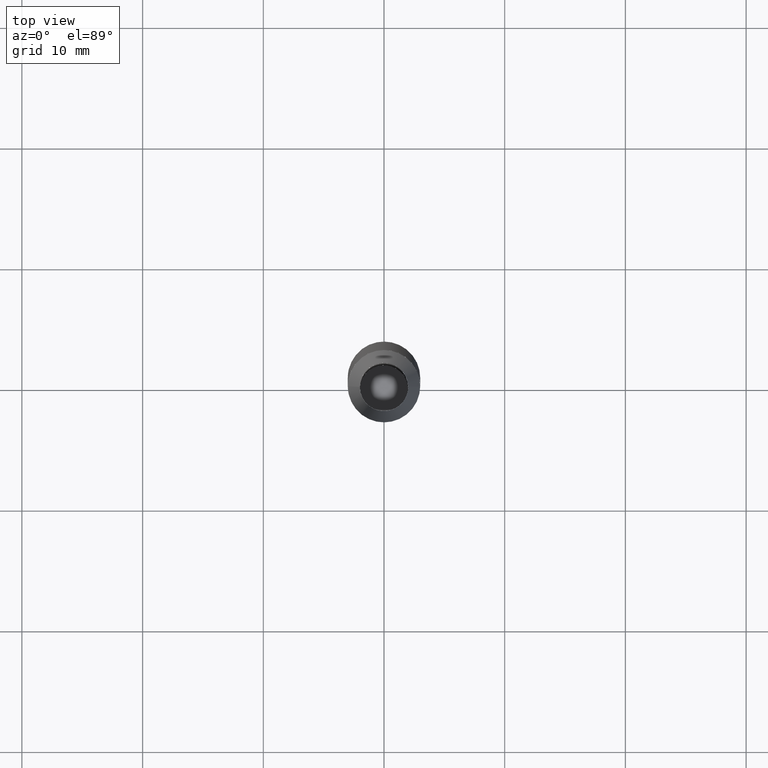
[diagram: clean part render]
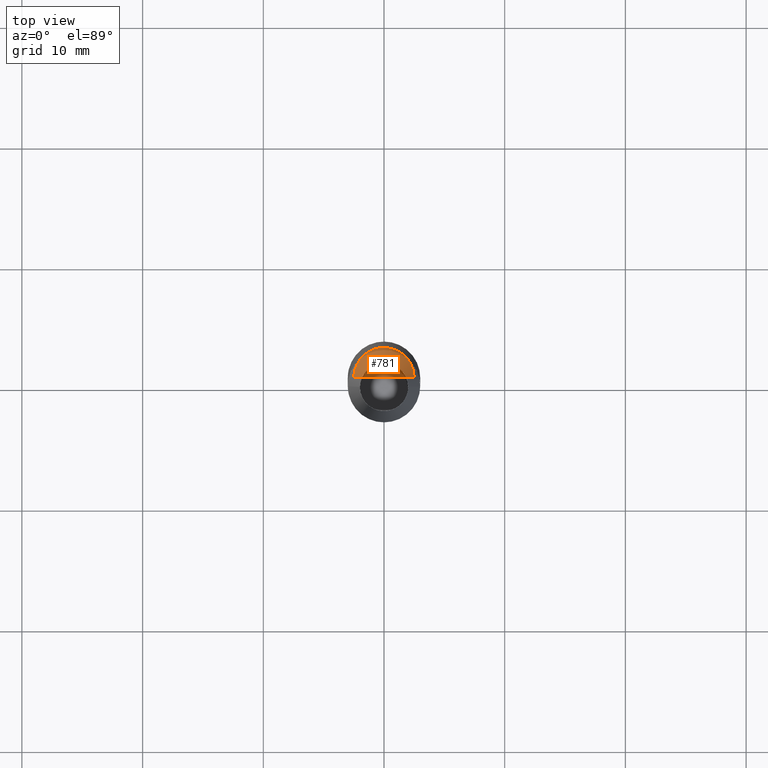
[diagram: same view with one face highlighted and labeled with its STEP entity id]
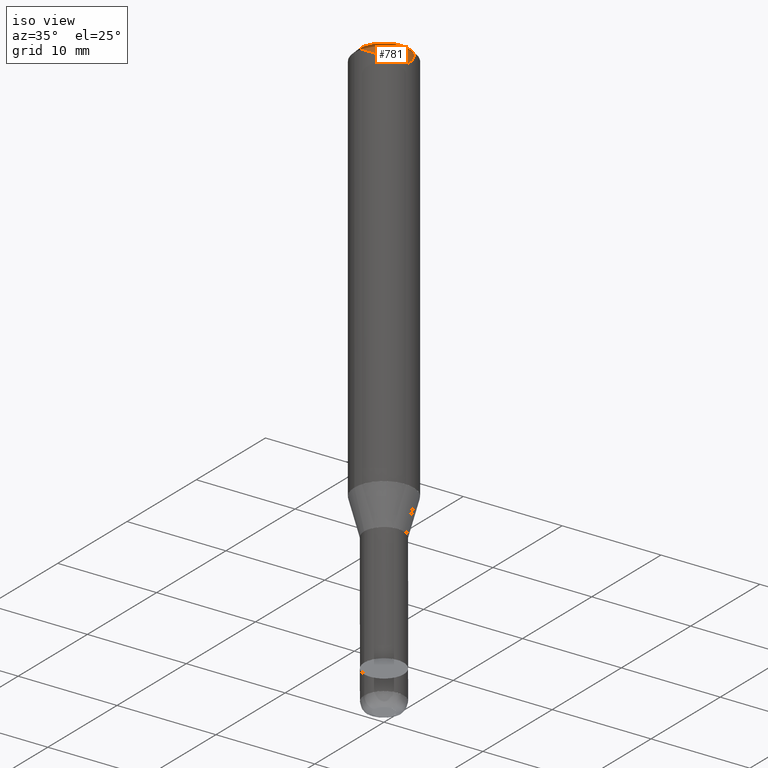
[diagram: same view with one face highlighted and labeled with its STEP entity id]
A machine part, top view. The second image highlights one B-rep face of the part: STEP entity #781.
A second angle (iso view) of the same face is appended — the face is thin or edge-on in the first view.
In plain terms, the highlighted face is a freeform B-spline surface patch.
Its self-contained STEP definition (entity closure, byte-faithful):
#497=CARTESIAN_POINT('',(2.5,0.0,40.267949192431));
#498=CARTESIAN_POINT('',(2.5,2.5,40.267949192431));
#499=CARTESIAN_POINT('',(0.0,2.5,40.267949192431));
#500=CARTESIAN_POINT('',(-2.5,2.5,40.267949192431));
#501=CARTESIAN_POINT('',(-2.5,0.0,40.267949192431));
#502=CARTESIAN_POINT('',(0.0,0.0,40.267949192431));
#766=(
BOUNDED_SURFACE()
B_SPLINE_SURFACE(1,2,(
(#497,#498,#499,#500,#501),
(#502,#502,#502,#502,#502)
), .UNSPECIFIED.,.F.,.F.,.F.)
B_SPLINE_SURFACE_WITH_KNOTS((2,2),(3,2,3),(
0.0,1.0),(
0.0,0.5,1.0), .UNSPECIFIED.)
GEOMETRIC_REPRESENTATION_ITEM()
RATIONAL_B_SPLINE_SURFACE(((1.0,0.707106781187,1.0,0.707106781187,1.0),
(1.0,0.707106781187,1.0,0.707106781187,1.0)
))
REPRESENTATION_ITEM('')
SURFACE()
);
#767=(
BOUNDED_CURVE()
B_SPLINE_CURVE(1,(#502,#497),.UNSPECIFIED.,.F.,.F.)
B_SPLINE_CURVE_WITH_KNOTS((2,2),
(0.0,1.0),.UNSPECIFIED.)
CURVE()
GEOMETRIC_REPRESENTATION_ITEM()
RATIONAL_B_SPLINE_CURVE((1.0,1.0))
REPRESENTATION_ITEM('')
);
#768=(
BOUNDED_CURVE()
B_SPLINE_CURVE(2,(#497,#498,#499,#500,#501),.UNSPECIFIED.,.F.,.F.)
B_SPLINE_CURVE_WITH_KNOTS((3,2,3),
(0.0,0.5,1.0),.UNSPECIFIED.)
CURVE()
GEOMETRIC_REPRESENTATION_ITEM()
RATIONAL_B_SPLINE_CURVE((1.0,0.707106781187,1.0,0.707106781187,1.0))
REPRESENTATION_ITEM('')
);
#769=(
BOUNDED_CURVE()
B_SPLINE_CURVE(1,(#501,#502),.UNSPECIFIED.,.F.,.F.)
B_SPLINE_CURVE_WITH_KNOTS((2,2),
(0.0,1.0),.UNSPECIFIED.)
CURVE()
GEOMETRIC_REPRESENTATION_ITEM()
RATIONAL_B_SPLINE_CURVE((1.0,1.0))
REPRESENTATION_ITEM('')
);
#770=VERTEX_POINT('',#497);
#771=VERTEX_POINT('',#501);
#772=VERTEX_POINT('',#502);
#773=EDGE_CURVE('',#772,#770,#767,.T.);
#774=EDGE_CURVE('',#770,#771,#768,.T.);
#775=EDGE_CURVE('',#771,#772,#769,.T.);
#776=ORIENTED_EDGE('',*,*,#773,.T.);
#777=ORIENTED_EDGE('',*,*,#774,.T.);
#778=ORIENTED_EDGE('',*,*,#775,.T.);
#779=EDGE_LOOP('',(#776,#777,#778));
#780=FACE_OUTER_BOUND('',#779,.T.);
#781=ADVANCED_FACE('',(#780),#766,.T.);